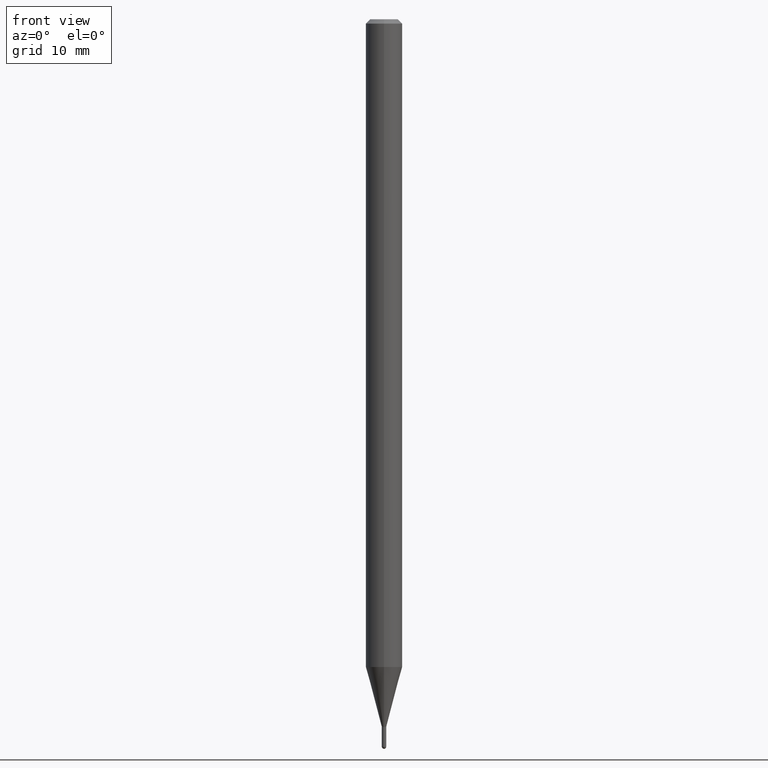
[diagram: clean part render]
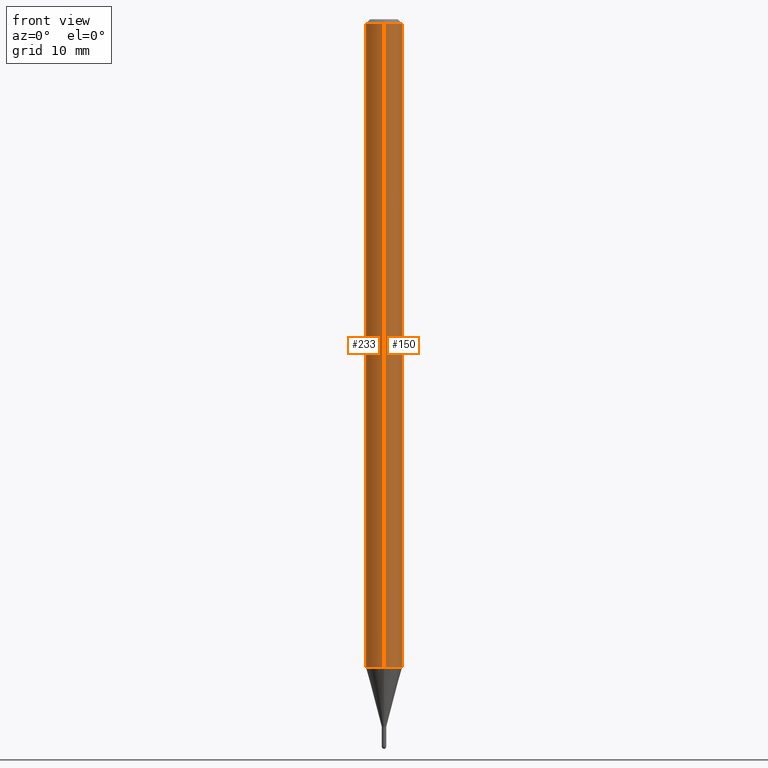
[diagram: same view with one multi-face feature highlighted, each face labeled with its STEP entity id]
A machine part, front view. The highlighted faces form ONE feature: a constant-radius fillet chain: 2 tangent blend faces with common blend radius 1.5875 mm. The faces share edges in the B-rep.
Their STEP definitions:
[1] entity #150 (Cylinder):
#10 = DIRECTION ( 'NONE',  ( -2.445325725904081225E-29, 3.491686237949240540E-15, 1.000000000000000000 ) ) ;
#16 = CARTESIAN_POINT ( 'NONE',  ( 3.667988588856124307E-31, -5.237529356923864655E-17, -0.01500000000000000812 ) ) ;
#23 = VERTEX_POINT ( 'NONE', #39 ) ;
#39 = CARTESIAN_POINT ( 'NONE',  ( -4.364351673553373859E-16, -0.06250000000000775768, -2.219737205583718342 ) ) ;
#46 = CYLINDRICAL_SURFACE ( 'NONE', #177, 0.06250000000000000000 ) ;
#59 = CARTESIAN_POINT ( 'NONE',  ( 5.427980493560302591E-29, -7.750625852600574086E-15, -2.219737205583718342 ) ) ;
#62 = DIRECTION ( 'NONE',  ( -6.982962677686265922E-15, -1.000000000000000000, 4.370956789862821150E-15 ) ) ;
#83 = DIRECTION ( 'NONE',  ( -2.445325725904081225E-29, 3.491686237949240934E-15, 1.000000000000000000 ) ) ;
#86 = DIRECTION ( 'NONE',  ( -6.982962677686265922E-15, -1.000000000000000000, 3.483106191921935554E-15 ) ) ;
#91 = LINE ( 'NONE', #126, #438 ) ;
#106 = ORIENTED_EDGE ( 'NONE', *, *, #116, .F. ) ;
#107 = EDGE_CURVE ( 'NONE', #273, #418, #329, .T. ) ;
#116 = EDGE_CURVE ( 'NONE', #459, #418, #272, .T. ) ;
#126 = CARTESIAN_POINT ( 'NONE',  ( -4.364351673553916201E-16, -0.06250000000000000000, 2.182303898718275337E-16 ) ) ;
#128 = DIRECTION ( 'NONE',  ( -2.445325725904081225E-29, 3.491686237949240934E-15, 1.000000000000000000 ) ) ;
#150 = ADVANCED_FACE ( 'NONE', ( #490 ), #46, .T. ) ;
#177 = AXIS2_PLACEMENT_3D ( 'NONE', #411, #128, #296 ) ;
#178 = DIRECTION ( 'NONE',  ( -2.445325725904081225E-29, 3.491686237949240934E-15, 1.000000000000000000 ) ) ;
#214 = DIRECTION ( 'NONE',  ( -2.445325725904081225E-29, 3.491686237949240540E-15, 1.000000000000000000 ) ) ;
#261 = ORIENTED_EDGE ( 'NONE', *, *, #107, .T. ) ;
#272 = CIRCLE ( 'NONE', #340, 0.06250000000000000000 ) ;
#273 = VERTEX_POINT ( 'NONE', #505 ) ;
#296 = DIRECTION ( 'NONE',  ( -6.982962677686265922E-15, -1.000000000000000000, 3.491686237949240540E-15 ) ) ;
#311 = AXIS2_PLACEMENT_3D ( 'NONE', #59, #178, #62 ) ;
#312 = ORIENTED_EDGE ( 'NONE', *, *, #495, .T. ) ;
#322 = EDGE_CURVE ( 'NONE', #23, #459, #91, .T. ) ;
#329 = LINE ( 'NONE', #373, #429 ) ;
#340 = AXIS2_PLACEMENT_3D ( 'NONE', #16, #83, #86 ) ;
#364 = CARTESIAN_POINT ( 'NONE',  ( -4.364351673553912750E-16, -0.06250000000000005551, -0.01499999999999979128 ) ) ;
#373 = CARTESIAN_POINT ( 'NONE',  ( 4.440892098500625669E-16, 0.06250000000000000000, -2.182303898718275337E-16 ) ) ;
#411 = CARTESIAN_POINT ( 'NONE',  ( 0.000000000000000000, 0.000000000000000000, 0.000000000000000000 ) ) ;
#415 = EDGE_LOOP ( 'NONE', ( #312, #261, #106, #478 ) ) ;
#418 = VERTEX_POINT ( 'NONE', #445 ) ;
#429 = VECTOR ( 'NONE', #10, 39.37007874015748143 ) ;
#438 = VECTOR ( 'NONE', #214, 39.37007874015748143 ) ;
#445 = CARTESIAN_POINT ( 'NONE',  ( 4.440892098501172448E-16, 0.06249999999999993755, -0.01500000000000022669 ) ) ;
#459 = VERTEX_POINT ( 'NONE', #364 ) ;
#478 = ORIENTED_EDGE ( 'NONE', *, *, #322, .F. ) ;
#490 = FACE_OUTER_BOUND ( 'NONE', #415, .T. ) ;
#495 = EDGE_CURVE ( 'NONE', #23, #273, #510, .T. ) ;
#505 = CARTESIAN_POINT ( 'NONE',  ( 4.440892098501167517E-16, 0.06249999999999224232, -2.219737205583718787 ) ) ;
#510 = CIRCLE ( 'NONE', #311, 0.06250000000000000000 ) ;
[2] entity #233 (Cylinder):
#1 = DIRECTION ( 'NONE',  ( -6.982962677686265922E-15, -1.000000000000000000, 3.483106191921935554E-15 ) ) ;
#10 = DIRECTION ( 'NONE',  ( -2.445325725904081225E-29, 3.491686237949240540E-15, 1.000000000000000000 ) ) ;
#20 = CARTESIAN_POINT ( 'NONE',  ( 5.427980493560302591E-29, -7.750625852600574086E-15, -2.219737205583718342 ) ) ;
#23 = VERTEX_POINT ( 'NONE', #39 ) ;
#39 = CARTESIAN_POINT ( 'NONE',  ( -4.364351673553373859E-16, -0.06250000000000775768, -2.219737205583718342 ) ) ;
#67 = CARTESIAN_POINT ( 'NONE',  ( 3.667988588856124307E-31, -5.237529356923864655E-17, -0.01500000000000000812 ) ) ;
#91 = LINE ( 'NONE', #126, #438 ) ;
#107 = EDGE_CURVE ( 'NONE', #273, #418, #329, .T. ) ;
#126 = CARTESIAN_POINT ( 'NONE',  ( -4.364351673553916201E-16, -0.06250000000000000000, 2.182303898718275337E-16 ) ) ;
#142 = CARTESIAN_POINT ( 'NONE',  ( 0.000000000000000000, 0.000000000000000000, 0.000000000000000000 ) ) ;
#156 = ORIENTED_EDGE ( 'NONE', *, *, #107, .F. ) ;
#183 = DIRECTION ( 'NONE',  ( -2.445325725904081225E-29, 3.491686237949240934E-15, 1.000000000000000000 ) ) ;
#190 = ORIENTED_EDGE ( 'NONE', *, *, #212, .F. ) ;
#211 = EDGE_LOOP ( 'NONE', ( #156, #301, #378, #190 ) ) ;
#212 = EDGE_CURVE ( 'NONE', #418, #459, #242, .T. ) ;
#214 = DIRECTION ( 'NONE',  ( -2.445325725904081225E-29, 3.491686237949240540E-15, 1.000000000000000000 ) ) ;
#223 = AXIS2_PLACEMENT_3D ( 'NONE', #142, #463, #271 ) ;
#228 = DIRECTION ( 'NONE',  ( -2.445325725904081225E-29, 3.491686237949240934E-15, 1.000000000000000000 ) ) ;
#233 = ADVANCED_FACE ( 'NONE', ( #355 ), #351, .T. ) ;
#242 = CIRCLE ( 'NONE', #380, 0.06250000000000000000 ) ;
#271 = DIRECTION ( 'NONE',  ( -6.982962677686265922E-15, -1.000000000000000000, 3.491686237949240540E-15 ) ) ;
#273 = VERTEX_POINT ( 'NONE', #505 ) ;
#283 = AXIS2_PLACEMENT_3D ( 'NONE', #20, #228, #300 ) ;
#300 = DIRECTION ( 'NONE',  ( -6.982962677686265922E-15, -1.000000000000000000, 4.370956789862821150E-15 ) ) ;
#301 = ORIENTED_EDGE ( 'NONE', *, *, #509, .T. ) ;
#322 = EDGE_CURVE ( 'NONE', #23, #459, #91, .T. ) ;
#329 = LINE ( 'NONE', #373, #429 ) ;
#351 = CYLINDRICAL_SURFACE ( 'NONE', #223, 0.06250000000000000000 ) ;
#355 = FACE_OUTER_BOUND ( 'NONE', #211, .T. ) ;
#364 = CARTESIAN_POINT ( 'NONE',  ( -4.364351673553912750E-16, -0.06250000000000005551, -0.01499999999999979128 ) ) ;
#373 = CARTESIAN_POINT ( 'NONE',  ( 4.440892098500625669E-16, 0.06250000000000000000, -2.182303898718275337E-16 ) ) ;
#378 = ORIENTED_EDGE ( 'NONE', *, *, #322, .T. ) ;
#380 = AXIS2_PLACEMENT_3D ( 'NONE', #67, #183, #1 ) ;
#394 = CIRCLE ( 'NONE', #283, 0.06250000000000000000 ) ;
#418 = VERTEX_POINT ( 'NONE', #445 ) ;
#429 = VECTOR ( 'NONE', #10, 39.37007874015748143 ) ;
#438 = VECTOR ( 'NONE', #214, 39.37007874015748143 ) ;
#445 = CARTESIAN_POINT ( 'NONE',  ( 4.440892098501172448E-16, 0.06249999999999993755, -0.01500000000000022669 ) ) ;
#459 = VERTEX_POINT ( 'NONE', #364 ) ;
#463 = DIRECTION ( 'NONE',  ( -2.445325725904081225E-29, 3.491686237949240934E-15, 1.000000000000000000 ) ) ;
#505 = CARTESIAN_POINT ( 'NONE',  ( 4.440892098501167517E-16, 0.06249999999999224232, -2.219737205583718787 ) ) ;
#509 = EDGE_CURVE ( 'NONE', #273, #23, #394, .T. ) ;